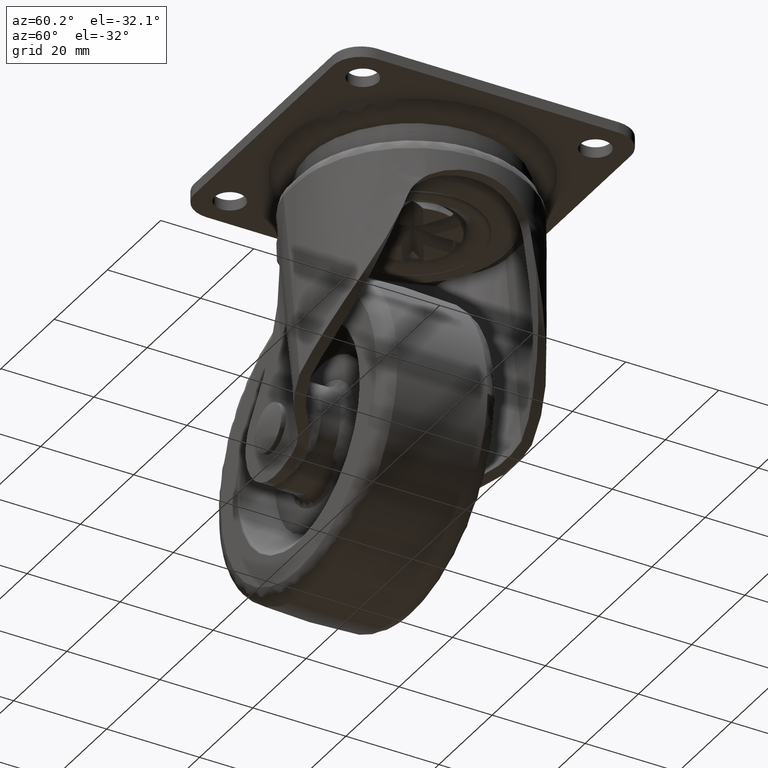
[diagram: clean part render]
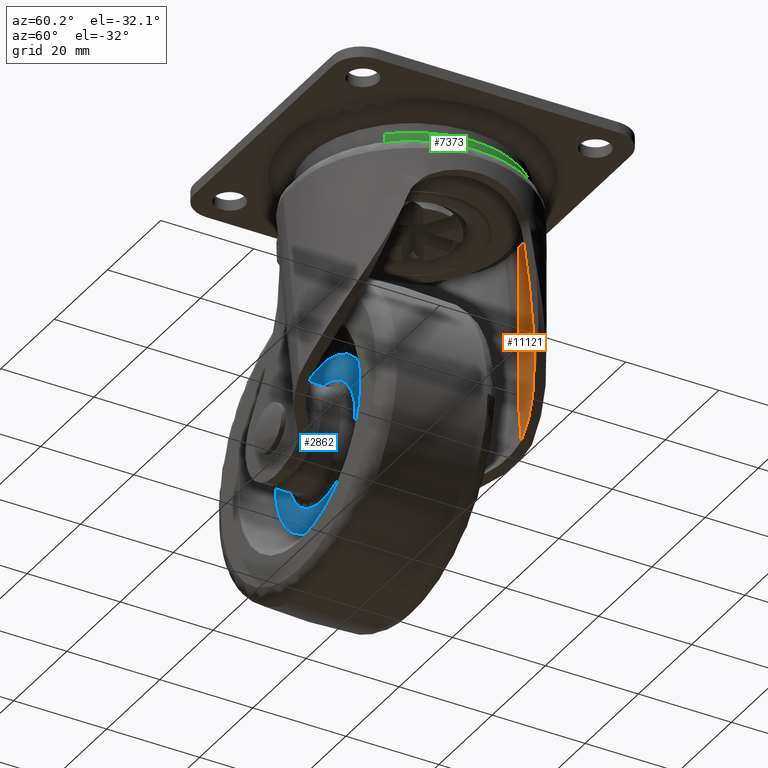
[diagram: same view with three faces highlighted in distinct colors, each labeled with its STEP entity id]
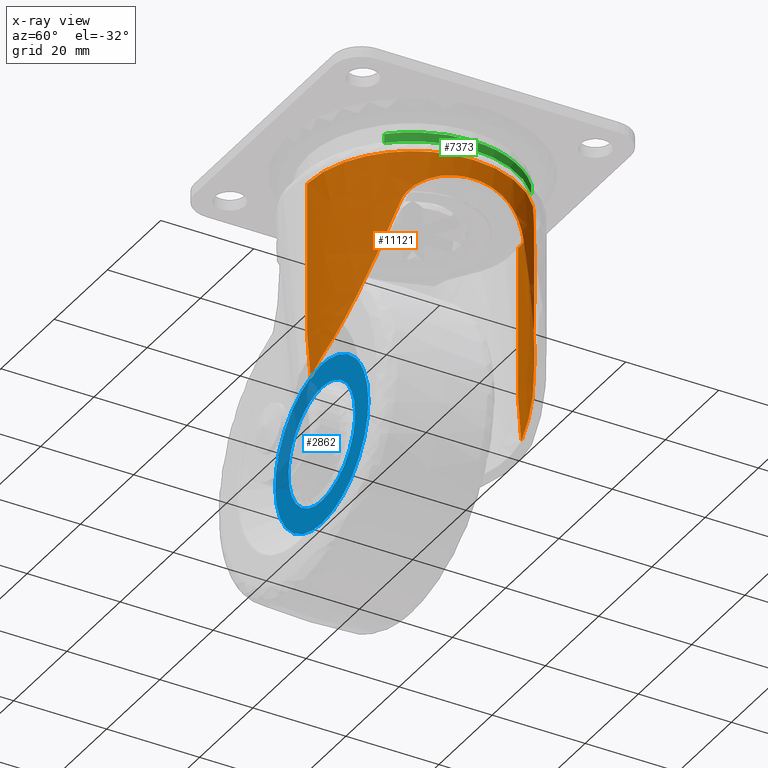
[diagram: x-ray of the same camera — body ghosted, the three highlighted faces saturated]
A machine part, auxiliary view with three faces highlighted in distinct colors.
The next image is the same camera in x-ray (body ghosted, the three faces saturated) — at least one of them is partly hidden behind the body in this view.
Their STEP definitions:

[orange] entity #11121 — the highlighted face is a freeform B-spline surface patch.
#9646=CARTESIAN_POINT('',(18.410752634047899,13.279088351535700,-22.541404799502249));
#9647=VERTEX_POINT('',#9646);
#9653=CARTESIAN_POINT('',(7.979908078954150,21.251142723426501,-48.671056066520997));
#9654=VERTEX_POINT('',#9653);
#9655=CARTESIAN_POINT('',(7.979908078954152,21.251142723426501,-48.671056066520990));
#9656=CARTESIAN_POINT('',(14.399423948539724,18.840583102356831,-40.770071035736713));
#9657=CARTESIAN_POINT('',(18.410752634047899,13.279088351535700,-22.541404799502249));
#9665=(BOUNDED_CURVE()B_SPLINE_CURVE(2,(#9655,#9656,#9657),.UNSPECIFIED.,.F.,.U.)CURVE()GEOMETRIC_REPRESENTATION_ITEM()QUASI_UNIFORM_CURVE()RATIONAL_B_SPLINE_CURVE((1.0,0.957276890092259,1.0))REPRESENTATION_ITEM(''));
#9666=EDGE_CURVE('',#9654,#9647,#9665,.T.);
#9698=CARTESIAN_POINT('',(7.979908078954360,-21.251142723426401,-48.671056066520698));
#9699=VERTEX_POINT('',#9698);
#9713=CARTESIAN_POINT('',(18.410752634047899,-13.279088351535700,-22.541404799502249));
#9714=VERTEX_POINT('',#9713);
#9715=CARTESIAN_POINT('',(18.410752634047899,-13.279088351535700,-22.541404799502249));
#9716=CARTESIAN_POINT('',(14.399423948539651,-18.840583102356760,-40.770071035736585));
#9717=CARTESIAN_POINT('',(7.979908078954365,-21.251142723426391,-48.671056066520741));
#9725=(BOUNDED_CURVE()B_SPLINE_CURVE(2,(#9715,#9716,#9717),.UNSPECIFIED.,.F.,.U.)CURVE()GEOMETRIC_REPRESENTATION_ITEM()QUASI_UNIFORM_CURVE()RATIONAL_B_SPLINE_CURVE((1.0,0.957276890092261,1.0))REPRESENTATION_ITEM(''));
#9726=EDGE_CURVE('',#9714,#9699,#9725,.T.);
#9859=CARTESIAN_POINT('',(18.410752634047899,13.279088351535700,-22.541404799502249));
#9860=CARTESIAN_POINT('',(18.477773013300141,13.186168145628701,-22.204557399769520));
#9861=CARTESIAN_POINT('',(18.558469371209320,13.072833414135120,-21.881489587105779));
#9862=CARTESIAN_POINT('',(18.741462385184871,12.809111856039930,-21.259349821598001));
#9863=CARTESIAN_POINT('',(18.843557427188930,12.659020509333571,-20.960077268554809));
#9864=CARTESIAN_POINT('',(19.009577540036808,12.407097804934180,-20.527653845590130));
#9865=CARTESIAN_POINT('',(19.067089298953409,12.318616654033161,-20.386288075400881));
#9866=CARTESIAN_POINT('',(19.156358356428580,12.178956735735140,-20.178404384437869));
#9867=CARTESIAN_POINT('',(19.186587108938710,12.131288402063790,-20.109875293556559));
#9868=CARTESIAN_POINT('',(19.247585527938810,12.034273327776029,-19.975099896527379));
#9869=CARTESIAN_POINT('',(19.278405055148781,11.984848687112891,-19.908746785141041));
#9870=CARTESIAN_POINT('',(19.433913447230371,11.733243392157600,-19.581953630740870));
#9871=CARTESIAN_POINT('',(19.562715706629469,11.517788386566810,-19.336204962093369));
#9872=CARTESIAN_POINT('',(19.824550185076319,11.061035444095230,-18.871261374572448));
#9873=CARTESIAN_POINT('',(19.957629862318122,10.819678068721430,-18.652147979779190));
#9874=CARTESIAN_POINT('',(20.124662833335311,10.502052051698151,-18.393580834669130));
#9875=CARTESIAN_POINT('',(20.158120084164441,10.437696418984199,-18.342618155186631));
#9876=CARTESIAN_POINT('',(20.224728086166738,10.308039857465010,-18.242700618924339));
#9877=CARTESIAN_POINT('',(20.257919906615669,10.242661738015091,-18.193681228153491));
#9878=CARTESIAN_POINT('',(20.357103682123110,10.044903352661530,-18.049349964464991));
#9879=CARTESIAN_POINT('',(20.422706481514979,9.910892993709490,-17.956778340584790));
#9880=CARTESIAN_POINT('',(20.617510451057150,9.502590312753219,-17.689205557156399));
#9881=CARTESIAN_POINT('',(20.744676586937128,9.222078479240524,-17.524224910148920));
#9882=CARTESIAN_POINT('',(20.991508465509710,8.645513895444458,-17.217393912731691));
#9883=CARTESIAN_POINT('',(21.111188554679639,8.349438134537843,-17.075597918926100));
#9884=CARTESIAN_POINT('',(21.341330474221859,7.742287319892037,-16.812766345701021));
#9885=CARTESIAN_POINT('',(21.451825279218252,7.431121772911880,-16.691677882304521));
#9886=CARTESIAN_POINT('',(21.661905417243879,6.794426562141363,-16.468740230714278));
#9887=CARTESIAN_POINT('',(21.760293224328500,6.472538055792422,-16.368146216251109));
#9888=CARTESIAN_POINT('',(21.943252624706989,5.822179518078116,-16.185650444784990));
#9889=CARTESIAN_POINT('',(22.027827446126839,5.493704395964789,-16.103777725793559));
#9890=CARTESIAN_POINT('',(22.182709789989950,4.830461298847746,-15.956797096773681));
#9891=CARTESIAN_POINT('',(22.253021033415870,4.495683405021660,-15.891743073015340));
#9892=CARTESIAN_POINT('',(22.441869071103561,3.482092784918534,-15.720091817055859));
#9893=CARTESIAN_POINT('',(22.538359487812489,2.794065861425366,-15.636831191629041));
#9894=CARTESIAN_POINT('',(22.619436999347499,1.918846817763091,-15.567859984096570));
#9895=CARTESIAN_POINT('',(22.633612060059150,1.743665012474282,-15.555877150335039));
#9896=CARTESIAN_POINT('',(22.657853197099360,1.393718429122468,-15.535429421121570));
#9897=CARTESIAN_POINT('',(22.667929704228211,1.218842079550192,-15.526962338845580));
#9898=CARTESIAN_POINT('',(22.692071800271879,0.694499657426955,-15.506704397231429));
#9899=CARTESIAN_POINT('',(22.700053294086601,0.345319757593270,-15.500041360610940));
#9900=CARTESIAN_POINT('',(22.699892608930458,-0.701096783941550,-15.499914176027170));
#9901=CARTESIAN_POINT('',(22.667693915616301,-1.397219986545263,-15.525954073239630));
#9902=CARTESIAN_POINT('',(22.571275845356769,-2.439087841495923,-15.607854972493181));
#9903=CARTESIAN_POINT('',(22.531104241040090,-2.785988437192700,-15.642389150127350));
#9904=CARTESIAN_POINT('',(22.458689487013061,-3.305731991424334,-15.705951001638560));
#9905=CARTESIAN_POINT('',(22.432526391786109,-3.478796313788977,-15.729097230777940));
#9906=CARTESIAN_POINT('',(22.376573800664520,-3.822199504791183,-15.779103959893209));
#9907=CARTESIAN_POINT('',(22.346742650954969,-3.992851026620213,-15.806000964968581));
#9908=CARTESIAN_POINT('',(22.251833446317342,-4.501663469488338,-15.892488452032820));
#9909=CARTESIAN_POINT('',(22.181341499230552,-4.836684371800563,-15.957869818745730));
#9910=CARTESIAN_POINT('',(22.026660141001809,-5.498333333903066,-16.104858941505569));
#9911=CARTESIAN_POINT('',(21.942467083326932,-5.824967944171921,-16.186440159347612));
#9912=CARTESIAN_POINT('',(21.670442872336171,-6.791933357365190,-16.457815417885829));
#9913=CARTESIAN_POINT('',(21.463124328831459,-7.419366525060207,-16.674056826070860));
#9914=CARTESIAN_POINT('',(21.175726021091961,-8.179550512033327,-17.001702682622589));
#9915=CARTESIAN_POINT('',(21.116837324659858,-8.330376923193610,-17.070120025589450));
#9916=CARTESIAN_POINT('',(20.996369963370029,-8.629510220164153,-17.213201899904881));
#9917=CARTESIAN_POINT('',(20.934696545480879,-8.778019655081378,-17.287990771867111));
#9918=CARTESIAN_POINT('',(20.747670069940821,-9.215464216974661,-17.520237569105479));
#9919=CARTESIAN_POINT('',(20.619791791160889,-9.497640310805489,-17.686062996457029));
#9920=CARTESIAN_POINT('',(20.360147013388119,-10.042180967174710,-18.042677829339631));
#9921=CARTESIAN_POINT('',(20.228401905725271,-10.304505381778871,-18.233537898326620));
#9922=CARTESIAN_POINT('',(19.963569990055792,-10.808651538226369,-18.642932351301091));
#9923=CARTESIAN_POINT('',(19.830458839835309,-11.050507169205780,-18.861402777052309));
#9924=CARTESIAN_POINT('',(19.632093631027491,-11.396868047246119,-19.212905069511670));
#9925=CARTESIAN_POINT('',(19.566591744337330,-11.508879272733690,-19.333374807720151));
#9926=CARTESIAN_POINT('',(19.437878185441111,-11.724960820910299,-19.580261067184210));
#9927=CARTESIAN_POINT('',(19.374581593509870,-11.829178877325459,-19.706831999704910));
#9928=CARTESIAN_POINT('',(19.188807378578250,-12.129930367860840,-20.096640046659569));
#9929=CARTESIAN_POINT('',(19.070537774859311,-12.314433708114050,-20.370101651684550));
#9930=CARTESIAN_POINT('',(18.904151503458589,-12.567148764845321,-20.801867252608400));
#9931=CARTESIAN_POINT('',(18.850523074145428,-12.647380227208849,-20.949383633998011));
#9932=CARTESIAN_POINT('',(18.773251929808389,-12.761548639372389,-21.176351540576508));
#9933=CARTESIAN_POINT('',(18.747991058612349,-12.798621964078119,-21.253068566689070));
#9934=CARTESIAN_POINT('',(18.698792915878599,-12.870393793597779,-21.407919889990470));
#9935=CARTESIAN_POINT('',(18.674876195492619,-12.905063165776509,-21.485975678855610));
#9936=CARTESIAN_POINT('',(18.558894774156400,-13.072257817085839,-21.879480773656351));
#9937=CARTESIAN_POINT('',(18.477752666059200,-13.186196356000501,-22.204687163399569));
#9938=CARTESIAN_POINT('',(18.410752634047899,-13.279088351535700,-22.541404799502249));
#9939=B_SPLINE_CURVE_WITH_KNOTS('',3,(#9859,#9860,#9861,#9862,#9863,#9864,#9865,#9866,#9867,#9868,#9869,#9870,#9871,#9872,#9873,#9874,#9875,#9876,#9877,#9878,#9879,#9880,#9881,#9882,#9883,#9884,#9885,#9886,#9887,#9888,#9889,#9890,#9891,#9892,#9893,#9894,#9895,#9896,#9897,#9898,#9899,#9900,#9901,#9902,#9903,#9904,#9905,#9906,#9907,#9908,#9909,#9910,#9911,#9912,#9913,#9914,#9915,#9916,#9917,#9918,#9919,#9920,#9921,#9922,#9923,#9924,#9925,#9926,#9927,#9928,#9929,#9930,#9931,#9932,#9933,#9934,#9935,#9936,#9937,#9938),.UNSPECIFIED.,.F.,.U.,(4,2,2,2,2,2,2,2,2,2,2,2,2,2,2,2,2,2,2,2,2,2,2,2,2,2,2,2,2,2,2,2,2,2,2,2,2,2,2,4),(0.0,0.031250000000000,0.062500000000001,0.078125000000001,0.085937500000001,0.093750000000001,0.125000000000001,0.156250000000001,0.164062500000001,0.171875000000001,0.187500000000001,0.218750000000001,0.250000000000002,0.281250000000002,0.312500000000002,0.343750000000002,0.375000000000002,0.437500000000002,0.453125000000002,0.468750000000002,0.500000000000001,0.562500000000001,0.593750000000001,0.609375000000001,0.625000000000001,0.656250000000001,0.687500000000001,0.750000000000001,0.765625000000001,0.781250000000001,0.812500000000001,0.843750000000001,0.875000000000001,0.890625000000000,0.906250000000000,0.937500000000000,0.953125000000000,0.960937500000000,0.968750000000000,1.0),.UNSPECIFIED.);
#9940=EDGE_CURVE('',#9647,#9714,#9939,.T.);
#10986=CARTESIAN_POINT('',(-0.824449057571097,22.685023335925170,-55.640842429085197));
#10987=CARTESIAN_POINT('',(-0.824449057571097,22.685023335925170,-10.191478939272869));
#10988=CARTESIAN_POINT('',(22.872635472263873,23.546254057114922,-55.640842429085190));
#10989=CARTESIAN_POINT('',(22.872635472263873,23.546254057114922,-10.191478939272871));
#10990=CARTESIAN_POINT('',(22.699394183104172,-0.165842455530163,-55.640842429085197));
#10991=CARTESIAN_POINT('',(22.699394183104172,-0.165842455530163,-10.191478939272869));
#10992=CARTESIAN_POINT('',(22.526152893944470,-23.877938968175240,-55.640842429085190));
#10993=CARTESIAN_POINT('',(22.526152893944470,-23.877938968175240,-10.191478939272871));
#10994=CARTESIAN_POINT('',(-1.155818278091450,-22.670555443306402,-55.640842429085197));
#10995=CARTESIAN_POINT('',(-1.155818278091450,-22.670555443306402,-10.191478939272869));
#11003=(BOUNDED_SURFACE()B_SPLINE_SURFACE(1,2,((#10986,#10988,#10990,#10992,#10994),(#10987,#10989,#10991,#10993,#10995)),.UNSPECIFIED.,.F.,.F.,.U.)B_SPLINE_SURFACE_WITH_KNOTS((2,2),(3,2,3),(0.0,45.449363489812328),(0.0,38.776317765216582,77.552635530433150),.UNSPECIFIED.)GEOMETRIC_REPRESENTATION_ITEM()RATIONAL_B_SPLINE_SURFACE(((1.0,0.691513055782269,1.0,0.691513055782269,1.0),(1.0,0.691513055782269,1.0,0.691513055782269,1.0)))REPRESENTATION_ITEM('')SURFACE());
#11004=ORIENTED_EDGE('',*,*,#9940,.T.);
#11005=ORIENTED_EDGE('',*,*,#9726,.T.);
#11006=CARTESIAN_POINT('',(1.212279397146756,-22.667606372602599,-54.559358467400202));
#11007=VERTEX_POINT('',#11006);
#11008=CARTESIAN_POINT('',(7.979908078954332,-21.251142723426419,-48.671056066520663));
#11009=CARTESIAN_POINT('',(7.724720732519774,-21.346966820697919,-48.936905064506661));
#11010=CARTESIAN_POINT('',(7.465186751481502,-21.439158511531179,-49.201376092177163));
#11011=CARTESIAN_POINT('',(6.940494234014548,-21.614718843988371,-49.724257902896042));
#11012=CARTESIAN_POINT('',(6.674990143663668,-21.698224688848111,-49.983036860442887));
#11013=CARTESIAN_POINT('',(5.868888257130397,-21.935358280372249,-50.751384484421592));
#11014=CARTESIAN_POINT('',(5.318709671233910,-22.075626238410798,-51.252968485577682));
#11015=CARTESIAN_POINT('',(4.191981594183861,-22.317016751772911,-52.234714081081741));
#11016=CARTESIAN_POINT('',(3.615434203184222,-22.418148486619359,-52.714875963114409));
#11017=CARTESIAN_POINT('',(2.434848238891040,-22.576896600268999,-53.653500638958441));
#11018=CARTESIAN_POINT('',(1.830812887144526,-22.634526770193599,-54.111963941890757));
#11019=CARTESIAN_POINT('',(1.212279397146750,-22.667606372602599,-54.559358467400202));
#11020=B_SPLINE_CURVE_WITH_KNOTS('',3,(#11008,#11009,#11010,#11011,#11012,#11013,#11014,#11015,#11016,#11017,#11018,#11019),.UNSPECIFIED.,.F.,.U.,(4,2,2,2,2,4),(0.0,0.125000000000000,0.250000000000000,0.500000000000000,0.750000000000000,1.0),.UNSPECIFIED.);
#11021=EDGE_CURVE('',#9699,#11007,#11020,.T.);
#11022=ORIENTED_EDGE('',*,*,#11021,.T.);
#11023=CARTESIAN_POINT('',(2.775558E-014,-22.699999999999999,-44.482497361255597));
#11024=VERTEX_POINT('',#11023);
#11025=CARTESIAN_POINT('',(1.212279397146756,-22.667606372602599,-54.559358467400202));
#11026=CARTESIAN_POINT('',(1.036674734488528,-22.676997832427880,-52.876713403351211));
#11027=CARTESIAN_POINT('',(0.853480543082068,-22.684816034417491,-51.194976326989149));
#11028=CARTESIAN_POINT('',(0.556212499033423,-22.693401123324708,-48.675064638794133));
#11029=CARTESIAN_POINT('',(0.453299496302949,-22.695732871325070,-47.835552370647967));
#11030=CARTESIAN_POINT('',(0.236336054002584,-22.699028971951019,-46.157863308783611));
#11031=CARTESIAN_POINT('',(0.122318854137746,-22.699999999999989,-45.319682537679192));
#11032=CARTESIAN_POINT('',(-6.303741E-014,-22.699999999999999,-44.482497361255597));
#11033=B_SPLINE_CURVE_WITH_KNOTS('',3,(#11025,#11026,#11027,#11028,#11029,#11030,#11031,#11032),.UNSPECIFIED.,.F.,.U.,(4,2,2,4),(0.0,0.500000000000001,0.750000000000000,1.0),.UNSPECIFIED.);
#11034=EDGE_CURVE('',#11007,#11024,#11033,.T.);
#11035=ORIENTED_EDGE('',*,*,#11034,.T.);
#11036=CARTESIAN_POINT('',(2.775558E-014,-22.699999999999999,-11.300000000000001));
#11037=VERTEX_POINT('',#11036);
#11038=CARTESIAN_POINT('',(2.775558E-014,-22.699999999999999,-44.482497361255597));
#11039=CARTESIAN_POINT('',(2.775558E-014,-22.699999999999999,-11.300000000000001));
#11040=QUASI_UNIFORM_CURVE('',1,(#11038,#11039),.UNSPECIFIED.,.F.,.U.);
#11041=EDGE_CURVE('',#11024,#11037,#11040,.T.);
#11042=ORIENTED_EDGE('',*,*,#11041,.T.);
#11043=CARTESIAN_POINT('',(22.699999999999971,0.000001190797119,-11.300000000000001));
#11044=VERTEX_POINT('',#11043);
#11045=CARTESIAN_POINT('',(2.775558E-014,-22.699999999999999,-11.300000000000001));
#11046=CARTESIAN_POINT('',(1.346430905282789,-22.700130485125211,-11.300000000000020));
#11047=CARTESIAN_POINT('',(3.342803879974638,-22.521836696696958,-11.299999999999971));
#11048=CARTESIAN_POINT('',(6.063322069687753,-21.910857402034679,-11.300000000000010));
#11049=CARTESIAN_POINT('',(8.803170095739493,-21.015234200714129,-11.299999999999979));
#11050=CARTESIAN_POINT('',(11.515156862541231,-19.660561889086051,-11.299999999999971));
#11051=CARTESIAN_POINT('',(13.953012847388740,-17.954558660116970,-11.300000000000001));
#11052=CARTESIAN_POINT('',(15.924146284823220,-16.254319491359311,-11.300000000000020));
#11053=CARTESIAN_POINT('',(18.025513815047020,-13.950187136556590,-11.300000000000001));
#11054=CARTESIAN_POINT('',(19.795449939969220,-11.265777745872370,-11.299999999999971));
#11055=CARTESIAN_POINT('',(21.087638840893010,-8.533445707625251,-11.300000000000070));
#11056=CARTESIAN_POINT('',(21.882341975344868,-6.200175013337451,-11.299999999999940));
#11057=CARTESIAN_POINT('',(22.524002883794228,-3.342810204147504,-11.299999999999759));
#11058=CARTESIAN_POINT('',(22.700118398760591,-1.300003336377531,-11.300000000000599));
#11059=CARTESIAN_POINT('',(22.699999999999971,0.000001190797119,-11.300000000000001));
#11060=B_SPLINE_CURVE_WITH_KNOTS('',3,(#11045,#11046,#11047,#11048,#11049,#11050,#11051,#11052,#11053,#11054,#11055,#11056,#11057,#11058,#11059),.UNSPECIFIED.,.F.,.U.,(4,1,1,1,1,1,1,1,1,1,1,1,4),(0.000000053222500,4.039264995940659,5.989280802993456,8.357140412491383,12.675013604909131,15.042879669142270,17.271438402197671,20.474965068929070,24.374986281549241,26.882136088983639,29.528568493968269,31.757142388223080,35.657133225002482),.UNSPECIFIED.);
#11061=EDGE_CURVE('',#11037,#11044,#11060,.T.);
#11062=ORIENTED_EDGE('',*,*,#11061,.T.);
#11063=CARTESIAN_POINT('',(0.0,22.699999999999999,-11.300000000000001));
#11064=VERTEX_POINT('',#11063);
#11065=CARTESIAN_POINT('',(22.699999999999971,0.000001190797119,-11.300000000000001));
#11066=CARTESIAN_POINT('',(22.700003319358970,0.789280952256135,-11.300000000000010));
#11067=CARTESIAN_POINT('',(22.603078438504689,2.646423490517170,-11.300000000000020));
#11068=CARTESIAN_POINT('',(22.076776550806080,5.625665943338420,-11.299999999999910));
#11069=CARTESIAN_POINT('',(21.044777133253628,8.717559085832528,-11.300000000000150));
#11070=CARTESIAN_POINT('',(19.475615373966509,11.835006644137280,-11.299999999999830));
#11071=CARTESIAN_POINT('',(17.256331176841950,14.945691709817231,-11.300000000000059));
#11072=CARTESIAN_POINT('',(14.333973947520580,17.762345103108391,-11.300000000000100));
#11073=CARTESIAN_POINT('',(10.956962980622260,20.003732540707599,-11.299999999999690));
#11074=CARTESIAN_POINT('',(7.420966214407283,21.571210762470500,-11.300000000000219));
#11075=CARTESIAN_POINT('',(3.714260033267737,22.499578054100549,-11.299999999999621));
#11076=CARTESIAN_POINT('',(1.207133763109942,22.700073703693409,-11.300000000000660));
#11077=CARTESIAN_POINT('',(0.0,22.699999999999999,-11.300000000000001));
#11078=B_SPLINE_CURVE_WITH_KNOTS('',3,(#11065,#11066,#11067,#11068,#11069,#11070,#11071,#11072,#11073,#11074,#11075,#11076,#11077),.UNSPECIFIED.,.F.,.U.,(4,1,1,1,1,1,1,1,1,1,4),(0.000000053328449,2.367846875383407,5.571424910290801,9.053569700119169,12.117862542902010,16.017882909088801,20.474964298202060,24.235694473918681,28.135707150117739,32.035729984148261,35.657131882694507),.UNSPECIFIED.);
#11079=EDGE_CURVE('',#11044,#11064,#11078,.T.);
#11080=ORIENTED_EDGE('',*,*,#11079,.T.);
#11081=CARTESIAN_POINT('',(0.0,22.699999999999999,-44.482497361255248));
#11082=VERTEX_POINT('',#11081);
#11083=CARTESIAN_POINT('',(0.0,22.699999999999999,-11.300000000000001));
#11084=CARTESIAN_POINT('',(0.0,22.699999999999999,-44.482497361255248));
#11085=QUASI_UNIFORM_CURVE('',1,(#11083,#11084),.UNSPECIFIED.,.F.,.U.);
#11086=EDGE_CURVE('',#11064,#11082,#11085,.T.);
#11087=ORIENTED_EDGE('',*,*,#11086,.T.);
#11088=CARTESIAN_POINT('',(1.212279397146764,22.667606372602599,-54.559358467400202));
#11089=VERTEX_POINT('',#11088);
#11090=CARTESIAN_POINT('',(0.0,22.699999999999999,-44.482497361255248));
#11091=CARTESIAN_POINT('',(0.122318854137820,22.700000000000010,-45.319682537678887));
#11092=CARTESIAN_POINT('',(0.236336054002543,22.699028971951019,-46.157863308783341));
#11093=CARTESIAN_POINT('',(0.453299496302914,22.695732871325070,-47.835552370647733));
#11094=CARTESIAN_POINT('',(0.556212499033390,22.693401123324708,-48.675064638793927));
#11095=CARTESIAN_POINT('',(0.853480543082044,22.684816034417491,-51.194976326989028));
#11096=CARTESIAN_POINT('',(1.036674734488487,22.676997832427919,-52.876713403351133));
#11097=CARTESIAN_POINT('',(1.212279397146720,22.667606372602648,-54.559358467400202));
#11098=B_SPLINE_CURVE_WITH_KNOTS('',3,(#11090,#11091,#11092,#11093,#11094,#11095,#11096,#11097),.UNSPECIFIED.,.F.,.U.,(4,2,2,4),(0.0,0.250000000000001,0.500000000000001,1.0),.UNSPECIFIED.);
#11099=EDGE_CURVE('',#11082,#11089,#11098,.T.);
#11100=ORIENTED_EDGE('',*,*,#11099,.T.);
#11101=CARTESIAN_POINT('',(1.212279397146713,22.667606372602592,-54.559358467400124));
#11102=CARTESIAN_POINT('',(1.826219139467904,22.634772447023010,-54.115286668299703));
#11103=CARTESIAN_POINT('',(2.429414296777892,22.577541563749360,-53.657741911707980));
#11104=CARTESIAN_POINT('',(3.318222499108321,22.458155727228931,-52.951213252472733));
#11105=CARTESIAN_POINT('',(3.611826500348095,22.412762767997560,-52.712333760471367));
#11106=CARTESIAN_POINT('',(4.048239476810426,22.336596954979122,-52.348947155031233));
#11107=CARTESIAN_POINT('',(4.193173228749664,22.309836220244971,-52.226863601167750));
#11108=CARTESIAN_POINT('',(4.480987627896904,22.253814140032102,-51.981621907705097));
#11109=CARTESIAN_POINT('',(4.623842190092386,22.224561284396259,-51.858489265000969));
#11110=CARTESIAN_POINT('',(5.332952544117834,22.072296466077120,-51.240282572390697));
#11111=CARTESIAN_POINT('',(5.883743997122180,21.931327129963961,-50.737582911445180));
#11112=CARTESIAN_POINT('',(6.954518876529761,21.615647579962900,-49.716232933625399));
#11113=CARTESIAN_POINT('',(7.474497720575624,21.440926786076719,-49.197582319581478));
#11114=CARTESIAN_POINT('',(7.979908078954099,21.251142723426501,-48.671056066520912));
#11115=B_SPLINE_CURVE_WITH_KNOTS('',3,(#11101,#11102,#11103,#11104,#11105,#11106,#11107,#11108,#11109,#11110,#11111,#11112,#11113,#11114),.UNSPECIFIED.,.F.,.U.,(4,2,2,2,2,2,4),(0.0,0.249999999999999,0.374999999999998,0.437499999999998,0.499999999999998,0.749999999999999,1.0),.UNSPECIFIED.);
#11116=EDGE_CURVE('',#11089,#9654,#11115,.T.);
#11117=ORIENTED_EDGE('',*,*,#11116,.T.);
#11118=ORIENTED_EDGE('',*,*,#9666,.T.);
#11119=EDGE_LOOP('',(#11004,#11005,#11022,#11035,#11042,#11062,#11080,#11087,#11100,#11117,#11118));
#11120=FACE_OUTER_BOUND('',#11119,.T.);
#11121=ADVANCED_FACE('',(#11120),#11003,.F.);

[blue] entity #2862 — the highlighted face is a freeform B-spline surface patch.
#70=CARTESIAN_POINT('',(2.190653283183822,-7.500000041289960,-35.137654517395397));
#71=VERTEX_POINT('',#70);
#72=CARTESIAN_POINT('',(0.0,-7.500000000000000,-34.999999999999993));
#73=VERTEX_POINT('',#72);
#74=CARTESIAN_POINT('',(2.190653283183822,-7.500000041289960,-35.137654517395397));
#75=CARTESIAN_POINT('',(1.464274893010926,-7.500000027599010,-35.045992975148103));
#76=CARTESIAN_POINT('',(0.732140250189762,-7.500000013799570,-34.999982252363722));
#77=CARTESIAN_POINT('',(0.0,-7.500000000000000,-34.999999999999993));
#78=B_SPLINE_CURVE_WITH_KNOTS('',3,(#74,#75,#76,#77),.UNSPECIFIED.,.F.,.U.,(4,4),(3.140785E-010,2.196420919314543),.UNSPECIFIED.);
#79=EDGE_CURVE('',#71,#73,#78,.T.);
#170=CARTESIAN_POINT('',(12.694051874483540,-7.500000168567599,-40.453794563074503));
#171=VERTEX_POINT('',#170);
#177=CARTESIAN_POINT('',(17.499999999999950,-7.500000000000000,-52.499998642106362));
#178=VERTEX_POINT('',#177);
#179=CARTESIAN_POINT('',(17.499999999999950,-7.500000000000000,-52.499998642106362));
#180=CARTESIAN_POINT('',(17.500006884143300,-7.500000010167492,-51.773407380557579));
#181=CARTESIAN_POINT('',(17.392173134851038,-7.500000034376163,-50.043404833230113));
#182=CARTESIAN_POINT('',(16.855064815520208,-7.500000069543069,-47.530300718250601));
#183=CARTESIAN_POINT('',(15.932157218927919,-7.500000103060591,-45.135066429560418));
#184=CARTESIAN_POINT('',(14.632957602738649,-7.500000136245463,-42.763604198506663));
#185=CARTESIAN_POINT('',(13.480121288387821,-7.500000156979102,-41.281933407604647));
#186=CARTESIAN_POINT('',(12.694051874483540,-7.500000168567599,-40.453794563074503));
#187=B_SPLINE_CURVE_WITH_KNOTS('',3,(#179,#180,#181,#182,#183,#184,#185,#186),.UNSPECIFIED.,.F.,.U.,(4,1,1,1,1,4),(0.000000014760486,2.179782556079418,5.189985810690104,7.681161367051815,9.860952863929729,13.286337248757230),.UNSPECIFIED.);
#188=EDGE_CURVE('',#178,#171,#187,.T.);
#190=CARTESIAN_POINT('',(0.0,-7.500000000000000,-70.0));
#191=VERTEX_POINT('',#190);
#192=CARTESIAN_POINT('',(0.0,-7.500000000000000,-70.0));
#193=CARTESIAN_POINT('',(0.930619712225544,-7.499999999999996,-70.000070701573136));
#194=CARTESIAN_POINT('',(2.469684378989642,-7.499999999999995,-69.876918373704683));
#195=CARTESIAN_POINT('',(4.642261639920626,-7.500000000000014,-69.410015073971564));
#196=CARTESIAN_POINT('',(6.580804904614336,-7.499999999999969,-68.763009884231465));
#197=CARTESIAN_POINT('',(8.652919163177337,-7.500000000000065,-67.775215783500656));
#198=CARTESIAN_POINT('',(10.660447167969350,-7.499999999999796,-66.451574775990977));
#199=CARTESIAN_POINT('',(12.434177188995420,-7.500000000000108,-64.883150578179922));
#200=CARTESIAN_POINT('',(13.802327800852650,-7.500000000000089,-63.316590256417271));
#201=CARTESIAN_POINT('',(14.906863583673230,-7.499999999999851,-61.727619540672187));
#202=CARTESIAN_POINT('',(16.030503892239789,-7.500000000000099,-59.686338961948138));
#203=CARTESIAN_POINT('',(17.161158231463091,-7.499999999999930,-56.616000502245150));
#204=CARTESIAN_POINT('',(17.500461441221301,-7.500000000000020,-54.003339191352637));
#205=CARTESIAN_POINT('',(17.499999999999950,-7.500000000000000,-52.499998642106362));
#206=B_SPLINE_CURVE_WITH_KNOTS('',3,(#192,#193,#194,#195,#196,#197,#198,#199,#200,#201,#202,#203,#204,#205),.UNSPECIFIED.,.F.,.U.,(4,1,1,1,1,1,1,1,1,1,1,4),(0.000000061062099,2.791847861056738,4.617276031413610,6.657487252908414,8.912445399446412,11.489553717486150,13.851831118068260,15.999430556374190,17.717505245557110,19.650324829282891,22.979073228997091,27.488979606406140),.UNSPECIFIED.);
#207=EDGE_CURVE('',#191,#178,#206,.T.);
#209=CARTESIAN_POINT('',(-17.499999999999950,-7.500000000000001,-52.500001357893559));
#210=VERTEX_POINT('',#209);
#211=CARTESIAN_POINT('',(-17.499999999999950,-7.500000000000001,-52.500001357893559));
#212=CARTESIAN_POINT('',(-17.500120350444099,-7.499999999999999,-53.609591027813657));
#213=CARTESIAN_POINT('',(-17.336031619090281,-7.500000000000009,-55.327589647504283));
#214=CARTESIAN_POINT('',(-16.733832503215840,-7.499999999999981,-57.763163379122972));
#215=CARTESIAN_POINT('',(-15.806500974684489,-7.500000000000073,-60.212351589567383));
#216=CARTESIAN_POINT('',(-14.433140007216840,-7.499999999999828,-62.535903572835380));
#217=CARTESIAN_POINT('',(-12.685024878934060,-7.500000000000324,-64.626169748354059));
#218=CARTESIAN_POINT('',(-11.024132790476580,-7.499999999999706,-66.159645045951095));
#219=CARTESIAN_POINT('',(-8.878852650668927,-7.500000000000100,-67.660756657739455));
#220=CARTESIAN_POINT('',(-6.428227241063065,-7.500000000000099,-68.866182080029660));
#221=CARTESIAN_POINT('',(-3.364465632355901,-7.499999999999733,-69.775050316832420));
#222=CARTESIAN_POINT('',(-1.216966099890735,-7.499999999999644,-70.000189934775833));
#223=CARTESIAN_POINT('',(0.0,-7.500000000000000,-70.0));
#224=B_SPLINE_CURVE_WITH_KNOTS('',3,(#211,#212,#213,#214,#215,#216,#217,#218,#219,#220,#221,#222,#223),.UNSPECIFIED.,.F.,.U.,(4,1,1,1,1,1,1,1,1,1,4),(0.000000061247750,3.328741159613763,5.154172872928555,7.516518125767796,11.167405591072789,13.207616503136039,15.677282878896721,17.932250691502290,21.046249463187610,23.838109738836259,27.488978075740910),.UNSPECIFIED.);
#225=EDGE_CURVE('',#210,#191,#224,.T.);
#227=CARTESIAN_POINT('',(0.0,-7.500000000000000,-34.999999999999993));
#228=CARTESIAN_POINT('',(-1.395962032104837,-7.499999999999957,-34.999635711488608));
#229=CARTESIAN_POINT('',(-3.507567180203053,-7.500000000000073,-35.254092334970849));
#230=CARTESIAN_POINT('',(-6.110675603058639,-7.499999999999949,-36.061323810727231));
#231=CARTESIAN_POINT('',(-8.243442244492861,-7.500000000000004,-36.998804613348987));
#232=CARTESIAN_POINT('',(-10.384386722803139,-7.500000000000052,-38.318006106850973));
#233=CARTESIAN_POINT('',(-12.309196554197820,-7.499999999999912,-39.988744406413197));
#234=CARTESIAN_POINT('',(-13.733915748242790,-7.500000000000044,-41.600051215740173));
#235=CARTESIAN_POINT('',(-14.936156782071130,-7.499999999999983,-43.295968559726298));
#236=CARTESIAN_POINT('',(-15.871794562392150,-7.500000000000009,-45.033591888800707));
#237=CARTESIAN_POINT('',(-16.743210842443091,-7.500000000000004,-47.232045930898792));
#238=CARTESIAN_POINT('',(-17.345502314354910,-7.499999999999999,-49.636581340850292));
#239=CARTESIAN_POINT('',(-17.500055749138919,-7.500000000000003,-51.569391825588042));
#240=CARTESIAN_POINT('',(-17.499999999999950,-7.500000000000001,-52.500001357893559));
#241=B_SPLINE_CURVE_WITH_KNOTS('',3,(#227,#228,#229,#230,#231,#232,#233,#234,#235,#236,#237,#238,#239,#240),.UNSPECIFIED.,.F.,.U.,(4,1,1,1,1,1,1,1,1,1,1,4),(0.000000061051985,4.187772259844067,6.335348722293755,8.160798418513160,11.167406213247340,13.851831118071910,15.784677348741980,17.610109328564270,20.079837191197232,21.690529581593619,24.697148902615471,27.488979606406090),.UNSPECIFIED.);
#242=EDGE_CURVE('',#73,#210,#241,.T.);
#261=CARTESIAN_POINT('',(12.694051874483540,-7.500000168567599,-40.453794563074503));
#262=CARTESIAN_POINT('',(12.005391681193000,-7.500000160523696,-39.727992801395111));
#263=CARTESIAN_POINT('',(10.409267892375150,-7.500000141668006,-38.311654079378577));
#264=CARTESIAN_POINT('',(7.667121713640149,-7.500000108654310,-36.654414673132138));
#265=CARTESIAN_POINT('',(4.842013074615763,-7.500000074117295,-35.604113046915032));
#266=CARTESIAN_POINT('',(2.997179281489443,-7.500000051307886,-35.239392891758172));
#267=CARTESIAN_POINT('',(2.190653283183822,-7.500000041289960,-35.137654517395397));
#268=B_SPLINE_CURVE_WITH_KNOTS('',3,(#261,#262,#263,#264,#265,#266,#267),.UNSPECIFIED.,.F.,.U.,(4,1,1,1,4),(0.000000010745923,3.001554682974048,6.378292530913243,9.567455707630472,12.006216080747530),.UNSPECIFIED.);
#269=EDGE_CURVE('',#171,#71,#268,.T.);
#2513=CARTESIAN_POINT('',(-12.469570920525980,-7.500000000000001,-51.628334355029331));
#2514=VERTEX_POINT('',#2513);
#2527=CARTESIAN_POINT('',(0.0,-7.500000000000000,-65.0));
#2528=VERTEX_POINT('',#2527);
#2529=CARTESIAN_POINT('',(-12.469570920525980,-7.500000000000001,-51.628334355029331));
#2530=CARTESIAN_POINT('',(-12.533046334852740,-7.500000000000012,-52.533998236183471));
#2531=CARTESIAN_POINT('',(-12.475986034309040,-7.499999999999989,-53.983344165837842));
#2532=CARTESIAN_POINT('',(-12.002666494422179,-7.500000000000031,-56.180568725394679));
#2533=CARTESIAN_POINT('',(-11.348730819064730,-7.499999999999989,-57.854698214053933));
#2534=CARTESIAN_POINT('',(-10.440363381401760,-7.500000000000030,-59.430053258753333));
#2535=CARTESIAN_POINT('',(-9.555720753482852,-7.499999999999946,-60.606489466633462));
#2536=CARTESIAN_POINT('',(-8.442773041185570,-7.500000000000015,-61.762255018324602));
#2537=CARTESIAN_POINT('',(-7.047461291818206,-7.500000000000005,-62.889071412511449));
#2538=CARTESIAN_POINT('',(-5.348148880665706,-7.499999999999978,-63.860000044146112));
#2539=CARTESIAN_POINT('',(-3.691575553185841,-7.500000000000025,-64.475291741013223));
#2540=CARTESIAN_POINT('',(-1.949228287204384,-7.500000000000035,-64.890448316373963));
#2541=CARTESIAN_POINT('',(-0.774372724384738,-7.499999999999949,-65.000090481389236));
#2542=CARTESIAN_POINT('',(0.0,-7.500000000000000,-65.0));
#2543=B_SPLINE_CURVE_WITH_KNOTS('',3,(#2529,#2530,#2531,#2532,#2533,#2534,#2535,#2536,#2537,#2538,#2539,#2540,#2541,#2542),.UNSPECIFIED.,.F.,.U.,(4,1,1,1,1,1,1,1,1,1,1,4),(0.000000072754066,2.723613422307878,4.325766201708472,6.728991746731680,8.090801470483108,9.773076383575170,11.134839387583860,12.897193250770011,15.140199527132481,16.982668952475539,18.184267887597390,20.507362817067310),.UNSPECIFIED.);
#2544=EDGE_CURVE('',#2514,#2528,#2543,.T.);
#2546=CARTESIAN_POINT('',(12.499013052100301,-7.500000000000000,-52.657075498680634));
#2547=VERTEX_POINT('',#2546);
#2548=CARTESIAN_POINT('',(0.0,-7.500000000000000,-65.0));
#2549=CARTESIAN_POINT('',(0.786219306328172,-7.499999999999997,-65.000073582423127));
#2550=CARTESIAN_POINT('',(2.358629763949144,-7.500000000000017,-64.851184377133706));
#2551=CARTESIAN_POINT('',(4.291070844967920,-7.500000000000021,-64.289162665725172));
#2552=CARTESIAN_POINT('',(5.907560477997706,-7.499999999999969,-63.549409481012233));
#2553=CARTESIAN_POINT('',(7.469981690617829,-7.500000000000012,-62.596354973396977));
#2554=CARTESIAN_POINT('',(9.009439676912178,-7.500000000000002,-61.259082160517927));
#2555=CARTESIAN_POINT('',(10.463217711453780,-7.500000000000001,-59.457946701798043));
#2556=CARTESIAN_POINT('',(11.482258143732070,-7.499999999999998,-57.603887928199953));
#2557=CARTESIAN_POINT('',(12.272488495748171,-7.500000000000003,-55.266601381207607));
#2558=CARTESIAN_POINT('',(12.486808251749361,-7.500000000000001,-53.646128794795402));
#2559=CARTESIAN_POINT('',(12.499013052100301,-7.500000000000000,-52.657075498680634));
#2560=B_SPLINE_CURVE_WITH_KNOTS('',3,(#2548,#2549,#2550,#2551,#2552,#2553,#2554,#2555,#2556,#2557,#2558,#2559),.UNSPECIFIED.,.F.,.U.,(4,1,1,1,1,1,1,1,1,4),(0.000000064082741,2.358650636210189,4.717304543987519,6.010769686828310,7.684652452536312,10.195445350175991,12.097593824855030,14.608428404371651,16.510580147510890,19.477904520081768),.UNSPECIFIED.);
#2561=EDGE_CURVE('',#2528,#2547,#2560,.T.);
#2607=CARTESIAN_POINT('',(0.0,-7.500000000000000,-39.999999999999993));
#2608=VERTEX_POINT('',#2607);
#2609=CARTESIAN_POINT('',(12.499013052100301,-7.500000000000000,-52.657075498680634));
#2610=CARTESIAN_POINT('',(12.511209763509370,-7.499999999999979,-51.703615785938133));
#2611=CARTESIAN_POINT('',(12.349952844380249,-7.500000000000028,-50.129545582539393));
#2612=CARTESIAN_POINT('',(11.668993460269990,-7.500000000000013,-47.851674464066278));
#2613=CARTESIAN_POINT('',(10.782963202676569,-7.499999999999969,-46.065904589784658));
#2614=CARTESIAN_POINT('',(9.710574371455282,-7.500000000000056,-44.578135387374722));
#2615=CARTESIAN_POINT('',(8.499021072199373,-7.499999999999849,-43.272798014521648));
#2616=CARTESIAN_POINT('',(7.087567098600797,-7.500000000000327,-42.137781835203562));
#2617=CARTESIAN_POINT('',(5.447464660580504,-7.499999999999440,-41.206509749479807));
#2618=CARTESIAN_POINT('',(3.744929540112862,-7.500000000000322,-40.525704519107862));
#2619=CARTESIAN_POINT('',(1.932809117769290,-7.499999999999857,-40.097719642769007));
#2620=CARTESIAN_POINT('',(0.618499022203524,-7.500000000000028,-39.999972664876289));
#2621=CARTESIAN_POINT('',(0.0,-7.500000000000000,-39.999999999999993));
#2622=B_SPLINE_CURVE_WITH_KNOTS('',3,(#2609,#2610,#2611,#2612,#2613,#2614,#2615,#2616,#2617,#2618,#2619,#2620,#2621),.UNSPECIFIED.,.F.,.U.,(4,1,1,1,1,1,1,1,1,1,4),(0.000000063519696,2.860554457034262,4.716077496259429,7.112777579070649,8.813688142611550,10.205265223506940,12.447333579753540,14.225543172104290,15.849124250908609,17.936566013685631,19.792065264338699),.UNSPECIFIED.);
#2623=EDGE_CURVE('',#2547,#2608,#2622,.T.);
#2625=CARTESIAN_POINT('',(0.0,-7.500000000000000,-39.999999999999993));
#2626=CARTESIAN_POINT('',(-1.123841013910391,-7.499999999999998,-39.999632354242671));
#2627=CARTESIAN_POINT('',(-2.931482162007903,-7.499999999999981,-40.245496598533173));
#2628=CARTESIAN_POINT('',(-5.140570109151546,-7.500000000000027,-41.056540897866782));
#2629=CARTESIAN_POINT('',(-6.645796809197344,-7.499999999999982,-41.875712380974882));
#2630=CARTESIAN_POINT('',(-7.958945738887187,-7.499999999999996,-42.816159706994192));
#2631=CARTESIAN_POINT('',(-9.033610875975482,-7.500000000000020,-43.818340750674373));
#2632=CARTESIAN_POINT('',(-10.140505715304720,-7.499999999999956,-45.124394350555299));
#2633=CARTESIAN_POINT('',(-11.117087995508211,-7.500000000000073,-46.654097786336038));
#2634=CARTESIAN_POINT('',(-12.067465592281470,-7.499999999999951,-48.913676562685062));
#2635=CARTESIAN_POINT('',(-12.398287307588150,-7.500000000000020,-50.604707592330932));
#2636=CARTESIAN_POINT('',(-12.469570920525980,-7.500000000000001,-51.628334355029331));
#2637=B_SPLINE_CURVE_WITH_KNOTS('',3,(#2625,#2626,#2627,#2628,#2629,#2630,#2631,#2632,#2633,#2634,#2635,#2636),.UNSPECIFIED.,.F.,.U.,(4,1,1,1,1,1,1,1,1,4),(0.000000017143268,3.371415034872834,5.423593997062785,7.036022721698535,8.501858487043792,10.260832806004951,11.433501550027939,13.632264935570319,15.684440217336670,18.762687941946560),.UNSPECIFIED.);
#2638=EDGE_CURVE('',#2608,#2514,#2637,.T.);
#2843=CARTESIAN_POINT('',(-19.248249932163151,-7.500000000000000,-71.748249932163205));
#2844=CARTESIAN_POINT('',(-19.248249932163151,-7.500000000000000,-33.251749129063633));
#2845=CARTESIAN_POINT('',(19.248250870936310,-7.500000000000000,-71.748249932163205));
#2846=CARTESIAN_POINT('',(19.248250870936310,-7.500000000000000,-33.251749129063633));
#2847=B_SPLINE_SURFACE_WITH_KNOTS('',1,1,((#2843,#2845),(#2844,#2846)),.UNSPECIFIED.,.F.,.F.,.U.,(2,2),(2,2),(0.0,38.496500803099579),(0.0,38.496500803099451),.UNSPECIFIED.);
#2848=ORIENTED_EDGE('',*,*,#207,.T.);
#2849=ORIENTED_EDGE('',*,*,#188,.T.);
#2850=ORIENTED_EDGE('',*,*,#269,.T.);
#2851=ORIENTED_EDGE('',*,*,#79,.T.);
#2852=ORIENTED_EDGE('',*,*,#242,.T.);
#2853=ORIENTED_EDGE('',*,*,#225,.T.);
#2854=EDGE_LOOP('',(#2848,#2849,#2850,#2851,#2852,#2853));
#2855=FACE_OUTER_BOUND('',#2854,.T.);
#2856=ORIENTED_EDGE('',*,*,#2561,.F.);
#2857=ORIENTED_EDGE('',*,*,#2544,.F.);
#2858=ORIENTED_EDGE('',*,*,#2638,.F.);
#2859=ORIENTED_EDGE('',*,*,#2623,.F.);
#2860=EDGE_LOOP('',(#2856,#2857,#2858,#2859));
#2861=FACE_BOUND('',#2860,.T.);
#2862=ADVANCED_FACE('',(#2855,#2861),#2847,.F.);

[green] entity #7373 — the highlighted face is a freeform B-spline surface patch.
#7284=CARTESIAN_POINT('',(14.516148719707545,17.191027495392262,-6.960250000000089));
#7285=CARTESIAN_POINT('',(15.008148540860715,16.775581555593533,-6.960250000000089));
#7286=CARTESIAN_POINT('',(15.475582740361480,16.332677026324429,-6.960250000000090));
#7287=CARTESIAN_POINT('',(31.808259766685900,0.857094285962951,-6.960250000000091));
#7288=CARTESIAN_POINT('',(16.332677026324429,-15.475582740361480,-6.960250000000090));
#7289=CARTESIAN_POINT('',(14.516148719707545,17.191027495392262,-9.050993750000123));
#7290=CARTESIAN_POINT('',(15.008148540860715,16.775581555593533,-9.050993750000121));
#7291=CARTESIAN_POINT('',(15.475582740361480,16.332677026324429,-9.050993750000121));
#7292=CARTESIAN_POINT('',(31.808259766685900,0.857094285962951,-9.050993750000121));
#7293=CARTESIAN_POINT('',(16.332677026324429,-15.475582740361480,-9.050993750000121));
#7301=(BOUNDED_SURFACE()B_SPLINE_SURFACE(2,1,((#7284,#7289),(#7285,#7290),(#7286,#7291),(#7287,#7292),(#7288,#7293)),.UNSPECIFIED.,.F.,.F.,.U.)B_SPLINE_SURFACE_WITH_KNOTS((3,2,3),(2,2),(0.0,1.491168824543133,38.770389438121683),(0.0,2.090743750000034),.UNSPECIFIED.)GEOMETRIC_REPRESENTATION_ITEM()RATIONAL_B_SPLINE_SURFACE(((0.977505800795127,0.977505800795127),(0.988284271247462,0.988284271247462),(1.0,1.0),(0.707106781186548,0.707106781186548),(1.0,1.0)))REPRESENTATION_ITEM('')SURFACE());
#7302=CARTESIAN_POINT('',(14.516148751690061,17.191027468386121,-9.000000000007441));
#7303=VERTEX_POINT('',#7302);
#7304=CARTESIAN_POINT('',(22.499999999999979,-0.000000906927893,-9.0));
#7305=VERTEX_POINT('',#7304);
#7306=CARTESIAN_POINT('',(14.516148751690061,17.191027468386121,-9.000000000007441));
#7307=CARTESIAN_POINT('',(15.489441053531641,16.369314467009900,-9.000000000007070));
#7308=CARTESIAN_POINT('',(16.898396207653398,14.957984230130840,-9.000000000006498));
#7309=CARTESIAN_POINT('',(18.755853142020950,12.525572271392290,-9.000000000005402));
#7310=CARTESIAN_POINT('',(20.313993546034510,9.886363114862492,-9.000000000004274));
#7311=CARTESIAN_POINT('',(21.518844837912390,6.843601726722081,-9.000000000002958));
#7312=CARTESIAN_POINT('',(22.313421787679740,3.464622234144671,-9.000000000001505));
#7313=CARTESIAN_POINT('',(22.500112493288611,1.273775619021894,-9.000000000000515));
#7314=CARTESIAN_POINT('',(22.499999999999979,-0.000000906927893,-9.0));
#7315=B_SPLINE_CURVE_WITH_KNOTS('',3,(#7306,#7307,#7308,#7309,#7310,#7311,#7312,#7313,#7314),.UNSPECIFIED.,.F.,.U.,(4,1,1,1,1,1,4),(0.000000017001188,3.821316948666793,5.961261511657588,9.171173557948052,12.992483859871101,15.743839937980010,19.565156869645929),.UNSPECIFIED.);
#7316=EDGE_CURVE('',#7303,#7305,#7315,.T.);
#7317=ORIENTED_EDGE('',*,*,#7316,.F.);
#7318=CARTESIAN_POINT('',(14.516148928573729,17.191027704188059,-7.010000000000091));
#7319=VERTEX_POINT('',#7318);
#7320=CARTESIAN_POINT('',(14.516148928573729,17.191027704188059,-7.010000000000091));
#7321=CARTESIAN_POINT('',(14.516148751690061,17.191027468386121,-9.000000000007441));
#7322=QUASI_UNIFORM_CURVE('',1,(#7320,#7321),.UNSPECIFIED.,.F.,.U.);
#7323=EDGE_CURVE('',#7319,#7303,#7322,.T.);
#7324=ORIENTED_EDGE('',*,*,#7323,.F.);
#7325=CARTESIAN_POINT('',(22.500000000000000,0.0,-7.010000000000090));
#7326=VERTEX_POINT('',#7325);
#7327=CARTESIAN_POINT('',(14.516148928573729,17.191027704188059,-7.010000000000091));
#7328=CARTESIAN_POINT('',(15.606280212415429,16.270752870512499,-7.010000000000104));
#7329=CARTESIAN_POINT('',(17.288294817651149,14.551059298266440,-7.010000000000066));
#7330=CARTESIAN_POINT('',(19.261424317284568,11.756642661569900,-7.010000000000114));
#7331=CARTESIAN_POINT('',(20.706417320252580,8.996864053418596,-7.010000000000090));
#7332=CARTESIAN_POINT('',(21.727806124976059,6.106428089939771,-7.010000000000093));
#7333=CARTESIAN_POINT('',(22.357978488632430,3.057035356833069,-7.010000000000083));
#7334=CARTESIAN_POINT('',(22.500056141542601,1.069969297759766,-7.010000000000097));
#7335=CARTESIAN_POINT('',(22.500000000000000,0.0,-7.010000000000090));
#7336=B_SPLINE_CURVE_WITH_KNOTS('',3,(#7327,#7328,#7329,#7330,#7331,#7332,#7333,#7334,#7335),.UNSPECIFIED.,.F.,.U.,(4,1,1,1,1,1,4),(0.000000017002609,4.279874929044757,7.184082949276279,10.241117899375970,13.603894845163840,16.355250816114950,19.565156107644519),.UNSPECIFIED.);
#7337=EDGE_CURVE('',#7319,#7326,#7336,.T.);
#7338=ORIENTED_EDGE('',*,*,#7337,.T.);
#7339=CARTESIAN_POINT('',(16.332676815958092,-15.475582529016989,-7.010000000000090));
#7340=VERTEX_POINT('',#7339);
#7341=CARTESIAN_POINT('',(22.500000000000000,0.0,-7.010000000000090));
#7342=CARTESIAN_POINT('',(22.500020575441081,-0.888816661381070,-7.010000000000097));
#7343=CARTESIAN_POINT('',(22.384006541821879,-2.844221433462255,-7.010000000000080));
#7344=CARTESIAN_POINT('',(21.854998878527990,-5.600785920282642,-7.010000000000110));
#7345=CARTESIAN_POINT('',(21.036284603640741,-8.096088335325371,-7.010000000000067));
#7346=CARTESIAN_POINT('',(20.000595004137988,-10.410941771709540,-7.010000000000085));
#7347=CARTESIAN_POINT('',(18.528967968504720,-12.903766371802620,-7.010000000000126));
#7348=CARTESIAN_POINT('',(17.158042793131251,-14.604630060747461,-7.010000000000047));
#7349=CARTESIAN_POINT('',(16.332676815958092,-15.475582529016989,-7.010000000000090));
#7350=B_SPLINE_CURVE_WITH_KNOTS('',3,(#7341,#7342,#7343,#7344,#7345,#7346,#7347,#7348,#7349),.UNSPECIFIED.,.F.,.U.,(4,1,1,1,1,1,4),(0.000000013598559,2.666453668850746,5.866222865570892,8.399371020760903,10.532518570447650,13.465631689445150,17.065353028037141),.UNSPECIFIED.);
#7351=EDGE_CURVE('',#7326,#7340,#7350,.T.);
#7352=ORIENTED_EDGE('',*,*,#7351,.T.);
#7353=CARTESIAN_POINT('',(16.332676999819220,-15.475582768334631,-8.999999999993843));
#7354=VERTEX_POINT('',#7353);
#7355=CARTESIAN_POINT('',(16.332676815958092,-15.475582529016989,-7.010000000000090));
#7356=CARTESIAN_POINT('',(16.332676999819220,-15.475582768334631,-8.999999999993843));
#7357=QUASI_UNIFORM_CURVE('',1,(#7355,#7356),.UNSPECIFIED.,.F.,.U.);
#7358=EDGE_CURVE('',#7340,#7354,#7357,.T.);
#7359=ORIENTED_EDGE('',*,*,#7358,.T.);
#7360=CARTESIAN_POINT('',(22.499999999999979,-0.000000906927893,-9.0));
#7361=CARTESIAN_POINT('',(22.500021003897590,-0.888817525464668,-8.999999999999636));
#7362=CARTESIAN_POINT('',(22.391882113163259,-2.710887624338557,-8.999999999998924));
#7363=CARTESIAN_POINT('',(21.807803532912001,-5.908481348631024,-8.999999999997687));
#7364=CARTESIAN_POINT('',(20.801889622390590,-8.772525138486362,-8.999999999996396));
#7365=CARTESIAN_POINT('',(19.024956057228721,-12.210712954118550,-8.999999999995250));
#7366=CARTESIAN_POINT('',(17.555725176825270,-14.185478371008580,-8.999999999994365));
#7367=CARTESIAN_POINT('',(16.332676999819220,-15.475582768334631,-8.999999999993843));
#7368=B_SPLINE_CURVE_WITH_KNOTS('',3,(#7360,#7361,#7362,#7363,#7364,#7365,#7366,#7367),.UNSPECIFIED.,.F.,.U.,(4,1,1,1,1,4),(0.000000013590203,2.666453552180773,5.466251503690671,9.732579931574598,11.732427279257120,17.065352281401271),.UNSPECIFIED.);
#7369=EDGE_CURVE('',#7305,#7354,#7368,.T.);
#7370=ORIENTED_EDGE('',*,*,#7369,.F.);
#7371=EDGE_LOOP('',(#7317,#7324,#7338,#7352,#7359,#7370));
#7372=FACE_OUTER_BOUND('',#7371,.T.);
#7373=ADVANCED_FACE('',(#7372),#7301,.T.);